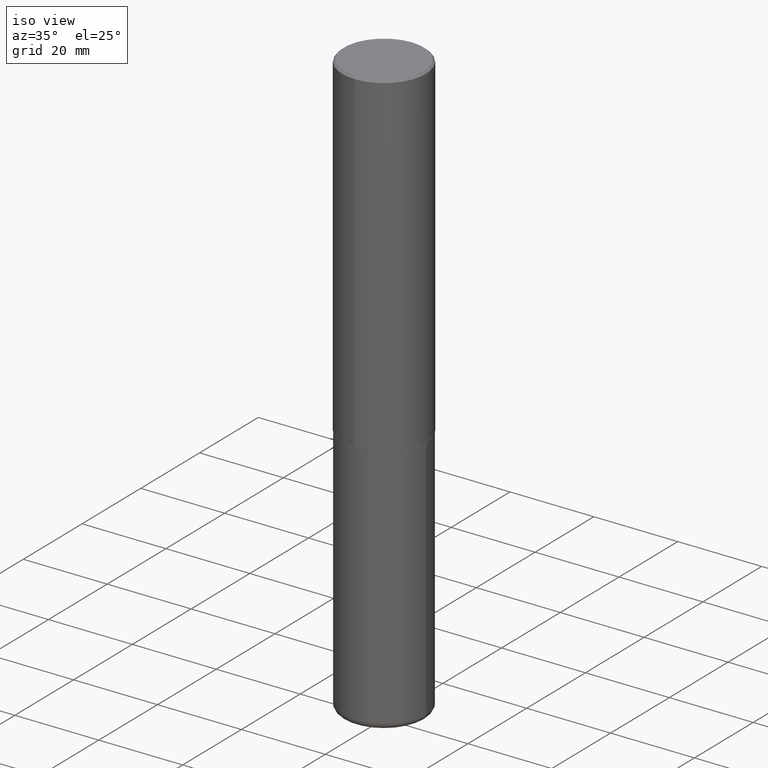
[diagram: clean part render]
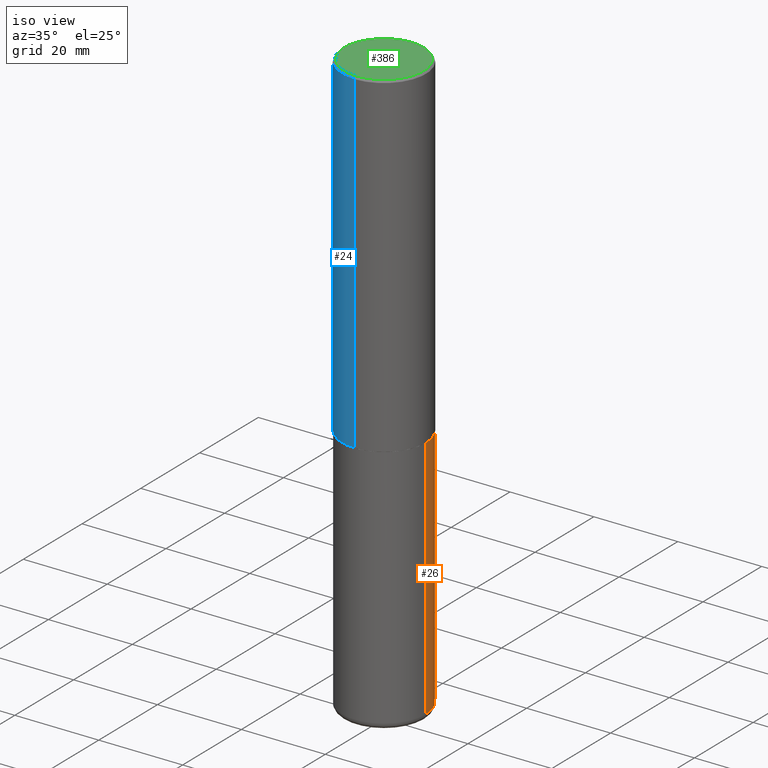
[diagram: same view with three faces highlighted in distinct colors, each labeled with its STEP entity id]
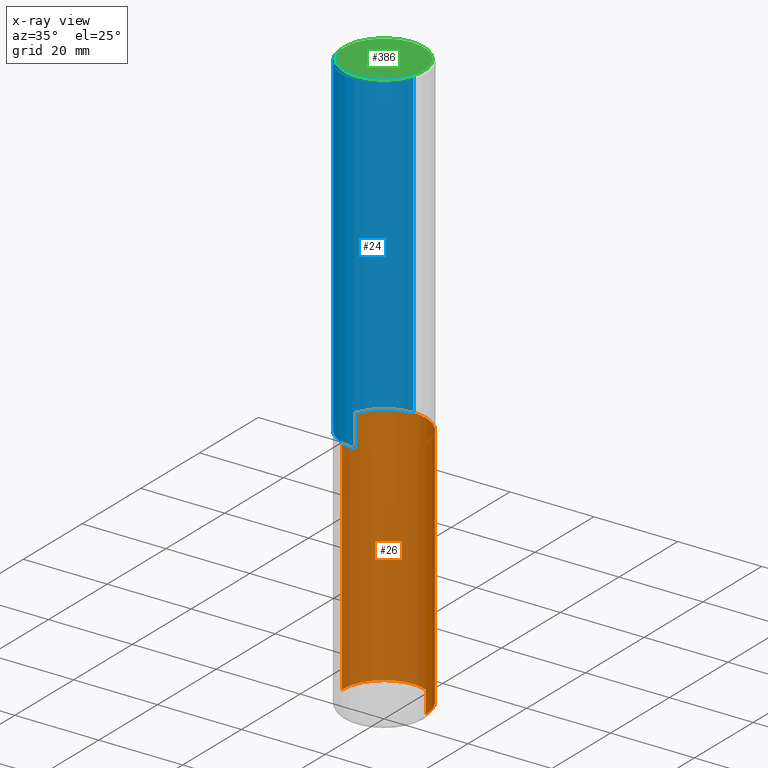
[diagram: x-ray of the same camera — body ghosted, the three highlighted faces saturated]
A machine part, iso view with three faces highlighted in distinct colors.
The next image is the same camera in x-ray (body ghosted, the three faces saturated) — at least one of them is partly hidden behind the body in this view.
Their STEP definitions:

[orange] entity #26 — the highlighted cylindrical surface (partial cylindrical patch) has radius 10 mm, axis along (-0, 0, 1).
#8 = CARTESIAN_POINT ( 'NONE',  ( 0.000000000000000000, 0.000000000000000000, 0.000000000000000000 ) ) ;
#14 = CYLINDRICAL_SURFACE ( 'NONE', #323, 0.3936999999999999389 ) ;
#21 = VECTOR ( 'NONE', #245, 39.37007874015748143 ) ;
#26 = ADVANCED_FACE ( 'NONE', ( #73 ), #14, .T. ) ;
#27 = CARTESIAN_POINT ( 'NONE',  ( 0.3936999999999999389, -1.374596203102545395E-14, -3.149599999999999511 ) ) ;
#31 = EDGE_CURVE ( 'NONE', #46, #320, #360, .T. ) ;
#38 = DIRECTION ( 'NONE',  ( -2.445468806185136597E-29, 3.491481338843145583E-15, 1.000000000000000000 ) ) ;
#46 = VERTEX_POINT ( 'NONE', #331 ) ;
#73 = FACE_OUTER_BOUND ( 'NONE', #329, .T. ) ;
#77 = EDGE_CURVE ( 'NONE', #46, #172, #184, .T. ) ;
#111 = AXIS2_PLACEMENT_3D ( 'NONE', #347, #200, #335 ) ;
#112 = CIRCLE ( 'NONE', #352, 0.3936999999999999389 ) ;
#145 = DIRECTION ( 'NONE',  ( -2.445468806185136597E-29, 3.491481338843145583E-15, 1.000000000000000000 ) ) ;
#165 = CARTESIAN_POINT ( 'NONE',  ( -0.3937000000000001054, -1.624059354562250123E-14, -5.452699999999999214 ) ) ;
#172 = VERTEX_POINT ( 'NONE', #27 ) ;
#184 = LINE ( 'NONE', #213, #21 ) ;
#200 = DIRECTION ( 'NONE',  ( -2.445468806185136597E-29, 3.491481338843145583E-15, 1.000000000000000000 ) ) ;
#213 = CARTESIAN_POINT ( 'NONE',  ( 0.3936999999999999389, -2.749192406205082822E-15, 1.919750796630859611E-29 ) ) ;
#219 = VECTOR ( 'NONE', #252, 39.37007874015748143 ) ;
#224 = CARTESIAN_POINT ( 'NONE',  ( -0.3936999999999999389, 2.797406750687513998E-15, -1.936584745033356455E-29 ) ) ;
#229 = CARTESIAN_POINT ( 'NONE',  ( 7.702248551960704469E-29, -1.099676962482037073E-14, -3.149599999999999511 ) ) ;
#237 = ORIENTED_EDGE ( 'NONE', *, *, #367, .T. ) ;
#241 = ORIENTED_EDGE ( 'NONE', *, *, #31, .T. ) ;
#245 = DIRECTION ( 'NONE',  ( -2.445468806185136877E-29, 3.491481338843145188E-15, 1.000000000000000000 ) ) ;
#252 = DIRECTION ( 'NONE',  ( -2.445468806185136877E-29, 3.491481338843145188E-15, 1.000000000000000000 ) ) ;
#274 = DIRECTION ( 'NONE',  ( 1.000000000000000000, -6.982962677686266711E-15, 4.876176775795935793E-29 ) ) ;
#307 = EDGE_CURVE ( 'NONE', #172, #388, #112, .T. ) ;
#318 = ORIENTED_EDGE ( 'NONE', *, *, #77, .F. ) ;
#320 = VERTEX_POINT ( 'NONE', #165 ) ;
#323 = AXIS2_PLACEMENT_3D ( 'NONE', #8, #145, #274 ) ;
#329 = EDGE_LOOP ( 'NONE', ( #241, #237, #336, #318 ) ) ;
#331 = CARTESIAN_POINT ( 'NONE',  ( 0.3937000000000001054, -2.178719270251510160E-14, -5.452699999999999214 ) ) ;
#335 = DIRECTION ( 'NONE',  ( 1.000000000000000000, -6.982962677686267499E-15, 0.000000000000000000 ) ) ;
#336 = ORIENTED_EDGE ( 'NONE', *, *, #307, .F. ) ;
#347 = CARTESIAN_POINT ( 'NONE',  ( 1.333440775948569289E-28, -1.903800029631001838E-14, -5.452699999999999214 ) ) ;
#352 = AXIS2_PLACEMENT_3D ( 'NONE', #229, #38, #358 ) ;
#358 = DIRECTION ( 'NONE',  ( 1.000000000000000000, -6.982962677686269866E-15, 0.000000000000000000 ) ) ;
#359 = LINE ( 'NONE', #224, #219 ) ;
#360 = CIRCLE ( 'NONE', #111, 0.3937000000000000499 ) ;
#367 = EDGE_CURVE ( 'NONE', #320, #388, #359, .T. ) ;
#388 = VERTEX_POINT ( 'NONE', #389 ) ;
#389 = CARTESIAN_POINT ( 'NONE',  ( -0.3936999999999999389, -1.221997820987768056E-14, -3.149599999999999511 ) ) ;

[blue] entity #24 — the highlighted cylindrical surface (partial cylindrical patch) has radius 10 mm, axis along (-0, 0, 1).
#18 = CARTESIAN_POINT ( 'NONE',  ( 2.797406750687554229E-15, 0.3936999999999892808, -3.148600000000001398 ) ) ;
#24 = ADVANCED_FACE ( 'NONE', ( #151 ), #343, .T. ) ;
#69 = DIRECTION ( 'NONE',  ( -2.447621189918198751E-29, 3.488399002831325748E-15, 1.000000000000000000 ) ) ;
#82 = AXIS2_PLACEMENT_3D ( 'NONE', #380, #244, #84 ) ;
#84 = DIRECTION ( 'NONE',  ( -6.982962677686265133E-15, -1.000000000000000000, 3.491137977679279029E-15 ) ) ;
#95 = CARTESIAN_POINT ( 'NONE',  ( 2.749192406205084005E-15, 0.3937000000000000499, -0.02000000000000144718 ) ) ;
#109 = CARTESIAN_POINT ( 'NONE',  ( 7.706580078576441267E-29, -1.098357310031471265E-14, -3.148600000000000065 ) ) ;
#118 = DIRECTION ( 'NONE',  ( -6.982962677686265922E-15, -1.000000000000000000, 4.163344669033672479E-15 ) ) ;
#124 = EDGE_LOOP ( 'NONE', ( #232, #399, #207, #128 ) ) ;
#128 = ORIENTED_EDGE ( 'NONE', *, *, #228, .F. ) ;
#149 = EDGE_CURVE ( 'NONE', #167, #225, #272, .T. ) ;
#151 = FACE_OUTER_BOUND ( 'NONE', #124, .T. ) ;
#157 = DIRECTION ( 'NONE',  ( -2.447621189918198751E-29, 3.488399002831325748E-15, 1.000000000000000000 ) ) ;
#159 = LINE ( 'NONE', #354, #189 ) ;
#167 = VERTEX_POINT ( 'NONE', #18 ) ;
#175 = DIRECTION ( 'NONE',  ( -2.447621189918199031E-29, 3.488399002831325748E-15, 1.000000000000000000 ) ) ;
#189 = VECTOR ( 'NONE', #69, 39.37007874015748143 ) ;
#207 = ORIENTED_EDGE ( 'NONE', *, *, #209, .T. ) ;
#209 = EDGE_CURVE ( 'NONE', #225, #223, #406, .T. ) ;
#223 = VERTEX_POINT ( 'NONE', #315 ) ;
#225 = VERTEX_POINT ( 'NONE', #379 ) ;
#228 = EDGE_CURVE ( 'NONE', #392, #223, #233, .T. ) ;
#232 = ORIENTED_EDGE ( 'NONE', *, *, #289, .F. ) ;
#233 = CIRCLE ( 'NONE', #82, 0.3937000000000001054 ) ;
#244 = DIRECTION ( 'NONE',  ( -2.447621189918199031E-29, 3.488399002831325748E-15, 1.000000000000000000 ) ) ;
#247 = CARTESIAN_POINT ( 'NONE',  ( -2.749192406205084400E-15, -0.3937000000000002164, 1.373382687414693916E-15 ) ) ;
#272 = CIRCLE ( 'NONE', #325, 0.3937000000000002720 ) ;
#283 = DIRECTION ( 'NONE',  ( -2.447621189918199031E-29, 3.488399002831325748E-15, 1.000000000000000000 ) ) ;
#285 = VECTOR ( 'NONE', #157, 39.37007874015748143 ) ;
#289 = EDGE_CURVE ( 'NONE', #167, #392, #159, .T. ) ;
#303 = DIRECTION ( 'NONE',  ( -6.982962677686265922E-15, -1.000000000000000000, 3.488399002831326143E-15 ) ) ;
#304 = AXIS2_PLACEMENT_3D ( 'NONE', #363, #175, #303 ) ;
#315 = CARTESIAN_POINT ( 'NONE',  ( -2.700978061722651647E-15, -0.3937000000000001609, -0.01999999999999869937 ) ) ;
#325 = AXIS2_PLACEMENT_3D ( 'NONE', #109, #283, #118 ) ;
#343 = CYLINDRICAL_SURFACE ( 'NONE', #304, 0.3937000000000002164 ) ;
#354 = CARTESIAN_POINT ( 'NONE',  ( 2.797406750687515575E-15, 0.3937000000000002164, -1.373382687414693916E-15 ) ) ;
#363 = CARTESIAN_POINT ( 'NONE',  ( 0.000000000000000000, 0.000000000000000000, 0.000000000000000000 ) ) ;
#379 = CARTESIAN_POINT ( 'NONE',  ( -2.749192406205007880E-15, -0.3937000000000113187, -3.148599999999998289 ) ) ;
#380 = CARTESIAN_POINT ( 'NONE',  ( 4.895242379836416489E-31, -6.976798005662675704E-17, -0.02000000000000007327 ) ) ;
#392 = VERTEX_POINT ( 'NONE', #95 ) ;
#399 = ORIENTED_EDGE ( 'NONE', *, *, #149, .T. ) ;
#406 = LINE ( 'NONE', #247, #285 ) ;

[green] entity #386 — the highlighted planar face has unit normal (0, -0, -1).
#36 = CIRCLE ( 'NONE', #383, 0.3736999999999999211 ) ;
#59 = ORIENTED_EDGE ( 'NONE', *, *, #176, .T. ) ;
#62 = DIRECTION ( 'NONE',  ( -6.982962677686265133E-15, -1.000000000000000000, 3.488399002831325748E-15 ) ) ;
#67 = DIRECTION ( 'NONE',  ( 2.447621189918199031E-29, -3.488399002831325748E-15, -1.000000000000000000 ) ) ;
#68 = EDGE_LOOP ( 'NONE', ( #59, #374 ) ) ;
#85 = DIRECTION ( 'NONE',  ( -6.982962677686265133E-15, -1.000000000000000000, 3.488399002831325748E-15 ) ) ;
#123 = FACE_OUTER_BOUND ( 'NONE', #68, .T. ) ;
#131 = VERTEX_POINT ( 'NONE', #407 ) ;
#136 = CIRCLE ( 'NONE', #242, 0.3736999999999999211 ) ;
#152 = DIRECTION ( 'NONE',  ( -2.447621189918199031E-29, 3.488399002831325748E-15, 1.000000000000000000 ) ) ;
#162 = PLANE ( 'NONE',  #361 ) ;
#176 = EDGE_CURVE ( 'NONE', #131, #418, #136, .T. ) ;
#222 = CARTESIAN_POINT ( 'NONE',  ( -4.046410242946616737E-45, 5.767025352895066351E-31, 1.653201181462990183E-16 ) ) ;
#242 = AXIS2_PLACEMENT_3D ( 'NONE', #351, #152, #85 ) ;
#254 = CARTESIAN_POINT ( 'NONE',  ( 2.609533152651356620E-15, 0.3736999999999999211, -1.220954648284916602E-15 ) ) ;
#290 = DIRECTION ( 'NONE',  ( 6.982962677686265922E-15, 1.000000000000000000, -3.488399002831325748E-15 ) ) ;
#322 = CARTESIAN_POINT ( 'NONE',  ( -2.632373081744936315E-15, -0.3736999999999999211, 1.468934825504365031E-15 ) ) ;
#351 = CARTESIAN_POINT ( 'NONE',  ( -4.046410242946616737E-45, 5.767025352895066351E-31, 1.653201181462990183E-16 ) ) ;
#355 = DIRECTION ( 'NONE',  ( -2.447621189918199031E-29, 3.488399002831325748E-15, 1.000000000000000000 ) ) ;
#361 = AXIS2_PLACEMENT_3D ( 'NONE', #254, #67, #290 ) ;
#374 = ORIENTED_EDGE ( 'NONE', *, *, #375, .T. ) ;
#375 = EDGE_CURVE ( 'NONE', #418, #131, #36, .T. ) ;
#383 = AXIS2_PLACEMENT_3D ( 'NONE', #222, #355, #62 ) ;
#386 = ADVANCED_FACE ( 'NONE', ( #123 ), #162, .F. ) ;
#407 = CARTESIAN_POINT ( 'NONE',  ( 2.679362779428220707E-15, 0.3736999999999999211, -1.138294589211767191E-15 ) ) ;
#418 = VERTEX_POINT ( 'NONE', #322 ) ;